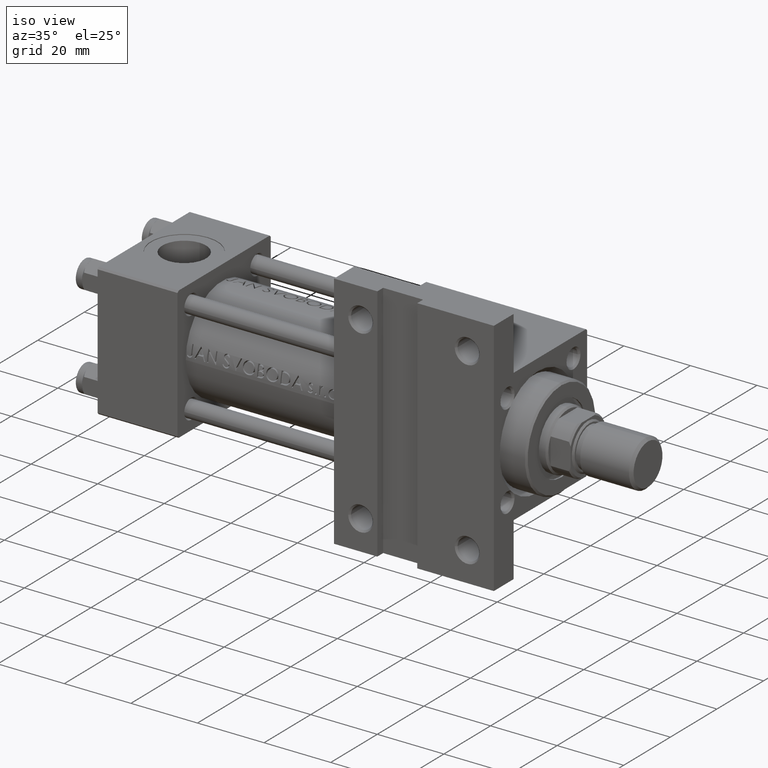
[diagram: clean part render]
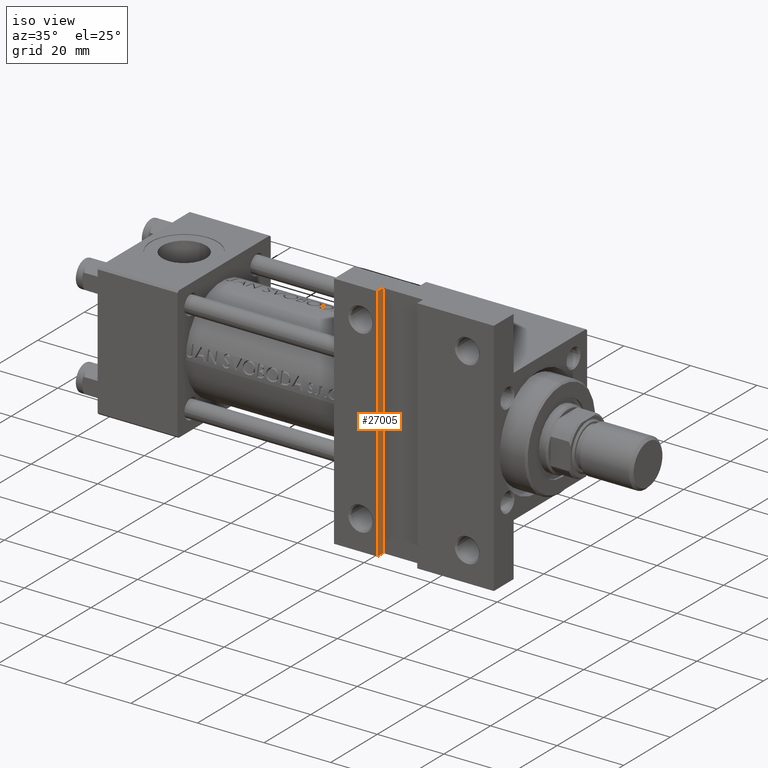
[diagram: same view with one face highlighted and labeled with its STEP entity id]
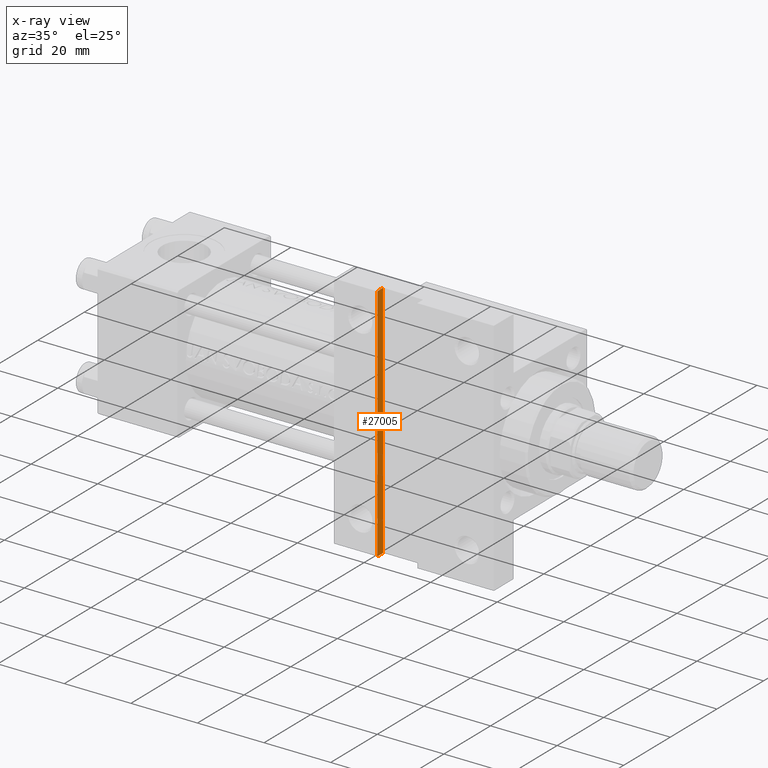
[diagram: x-ray of the same camera — body ghosted, the highlighted face saturated]
A machine part, iso view. The second image highlights one B-rep face of the part: STEP entity #27005.
The next image is the same camera in x-ray: the body ghosted, the highlighted face saturated — about 0% of this face is hidden behind the body in this view.
In plain terms, the highlighted planar face has unit normal (-1, 0, 0).
Its self-contained STEP definition (entity closure, byte-faithful):
#2972 = DIRECTION ( 'NONE',  ( -0.000000000000000000, -0.000000000000000000, -1.000000000000000000 ) ) ;
#3203 = ORIENTED_EDGE ( 'NONE', *, *, #20355, .F. ) ;
#3306 = DIRECTION ( 'NONE',  ( 0.000000000000000000, 1.000000000000000000, 0.000000000000000000 ) ) ;
#4057 = CARTESIAN_POINT ( 'NONE',  ( 83.99999999999997158, -35.99999999999999289, -20.00000000000000000 ) ) ;
#5195 = VECTOR ( 'NONE', #12135, 1000.000000000000000 ) ;
#7063 = FACE_OUTER_BOUND ( 'NONE', #12868, .T. ) ;
#8312 = CARTESIAN_POINT ( 'NONE',  ( 83.99999999999997158, -35.99999999999999289, -17.50000000000000000 ) ) ;
#9850 = PLANE ( 'NONE',  #20680 ) ;
#10646 = EDGE_CURVE ( 'NONE', #44263, #41463, #34021, .T. ) ;
#12135 = DIRECTION ( 'NONE',  ( 0.000000000000000000, 1.000000000000000000, 0.000000000000000000 ) ) ;
#12630 = CARTESIAN_POINT ( 'NONE',  ( 83.99999999999997158, -35.99999999999999289, -17.50000000000000000 ) ) ;
#12868 = EDGE_LOOP ( 'NONE', ( #32442, #49339, #3203, #28923 ) ) ;
#13256 = DIRECTION ( 'NONE',  ( -0.000000000000000000, -0.000000000000000000, -1.000000000000000000 ) ) ;
#16590 = VERTEX_POINT ( 'NONE', #37322 ) ;
#20355 = EDGE_CURVE ( 'NONE', #16590, #35422, #23224, .T. ) ;
#20520 = CARTESIAN_POINT ( 'NONE',  ( 83.99999999999997158, 35.99999999999995026, -20.00000000000000000 ) ) ;
#20680 = AXIS2_PLACEMENT_3D ( 'NONE', #40546, #21417, #36770 ) ;
#21417 = DIRECTION ( 'NONE',  ( -1.000000000000000000, 0.000000000000000000, 0.000000000000000000 ) ) ;
#22102 = LINE ( 'NONE', #37458, #48381 ) ;
#23224 = LINE ( 'NONE', #12630, #5195 ) ;
#24459 = EDGE_CURVE ( 'NONE', #16590, #44263, #36415, .T. ) ;
#27005 = ADVANCED_FACE ( 'NONE', ( #7063 ), #9850, .F. ) ;
#28923 = ORIENTED_EDGE ( 'NONE', *, *, #24459, .T. ) ;
#32442 = ORIENTED_EDGE ( 'NONE', *, *, #10646, .T. ) ;
#34021 = LINE ( 'NONE', #4057, #48552 ) ;
#35170 = EDGE_CURVE ( 'NONE', #35422, #41463, #22102, .T. ) ;
#35422 = VERTEX_POINT ( 'NONE', #40610 ) ;
#35623 = CARTESIAN_POINT ( 'NONE',  ( 83.99999999999997158, -35.99999999999999289, -20.00000000000000000 ) ) ;
#36415 = LINE ( 'NONE', #8312, #43122 ) ;
#36770 = DIRECTION ( 'NONE',  ( 0.000000000000000000, 0.000000000000000000, 1.000000000000000000 ) ) ;
#37322 = CARTESIAN_POINT ( 'NONE',  ( 83.99999999999997158, -35.99999999999999289, -17.50000000000000000 ) ) ;
#37458 = CARTESIAN_POINT ( 'NONE',  ( 83.99999999999997158, 35.99999999999995026, -17.50000000000000000 ) ) ;
#40546 = CARTESIAN_POINT ( 'NONE',  ( 83.99999999999997158, -35.99999999999999289, -17.50000000000000000 ) ) ;
#40610 = CARTESIAN_POINT ( 'NONE',  ( 83.99999999999997158, 35.99999999999995026, -17.50000000000000000 ) ) ;
#41463 = VERTEX_POINT ( 'NONE', #20520 ) ;
#43122 = VECTOR ( 'NONE', #13256, 1000.000000000000000 ) ;
#44263 = VERTEX_POINT ( 'NONE', #35623 ) ;
#48381 = VECTOR ( 'NONE', #2972, 1000.000000000000000 ) ;
#48552 = VECTOR ( 'NONE', #3306, 1000.000000000000000 ) ;
#49339 = ORIENTED_EDGE ( 'NONE', *, *, #35170, .F. ) ;